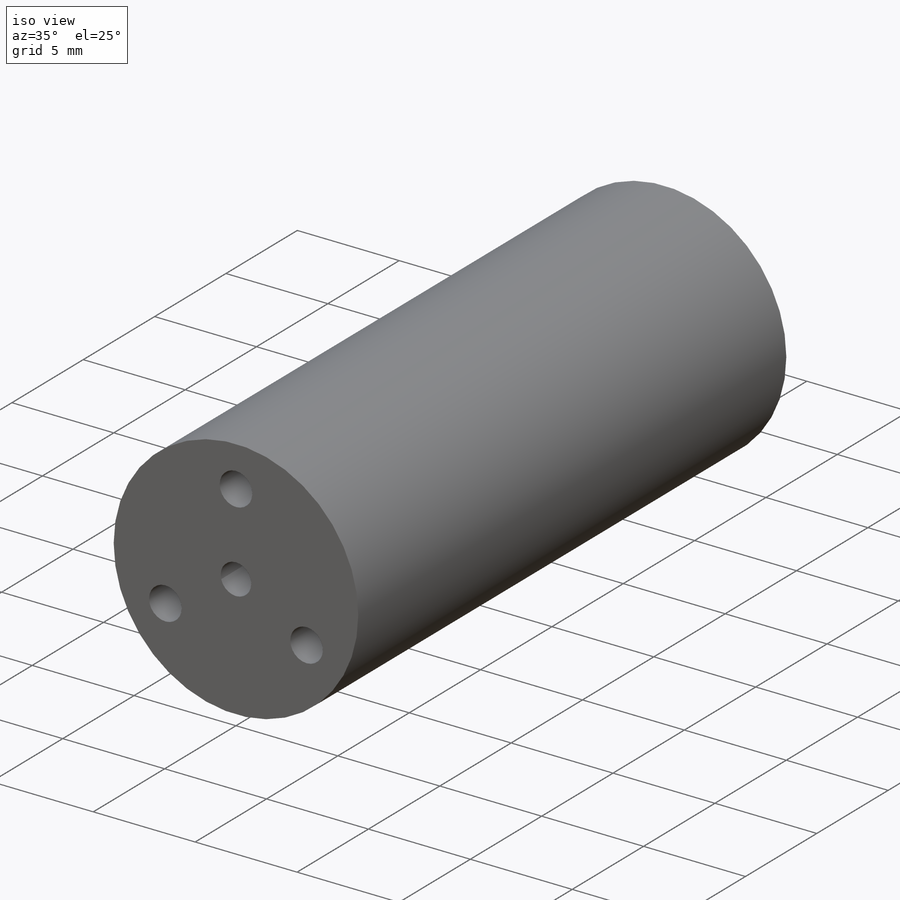
[diagram: iso view]
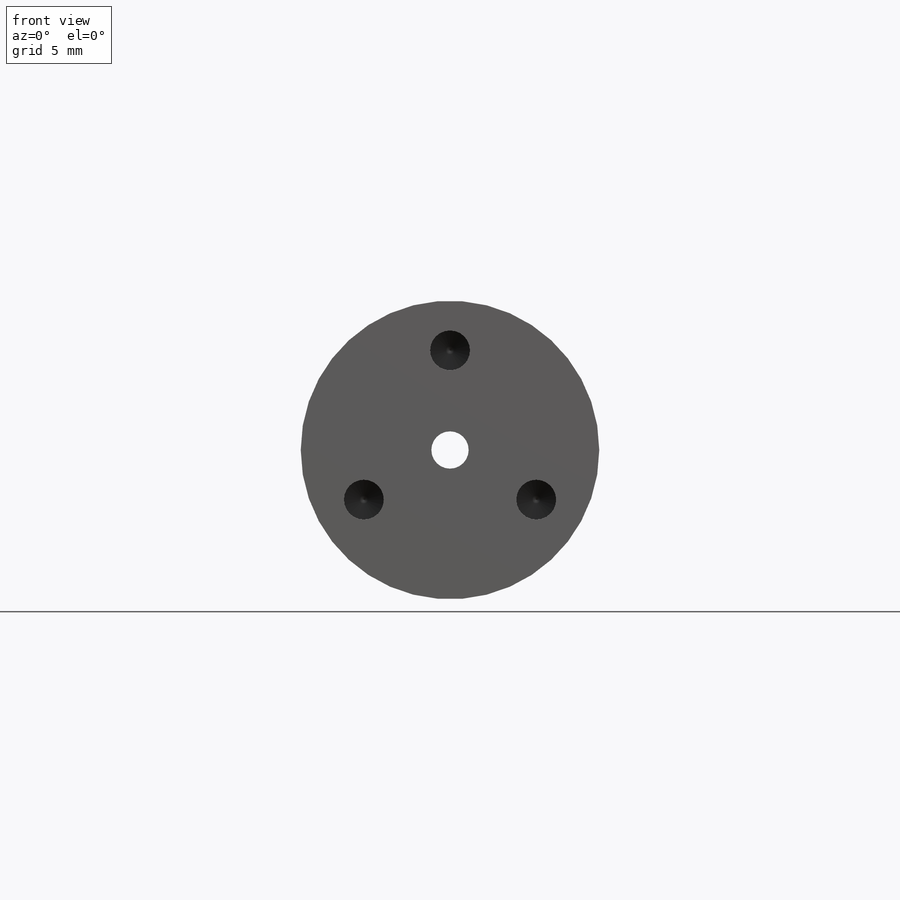
[diagram: front view]
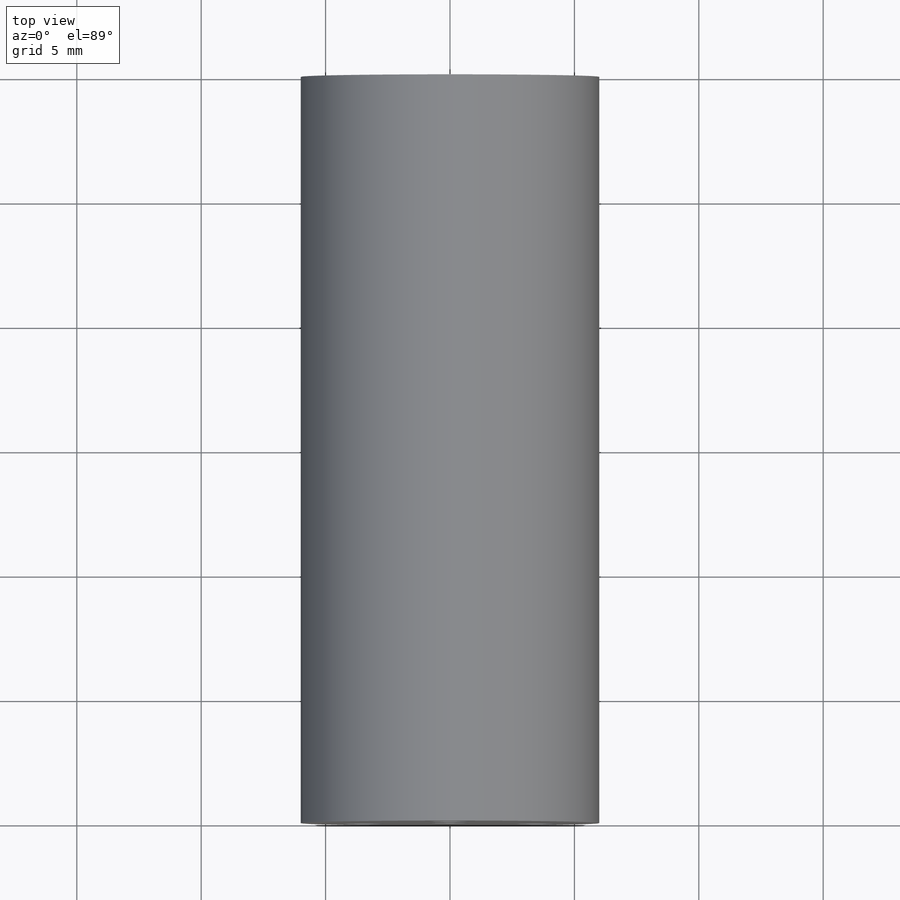
[diagram: top view]
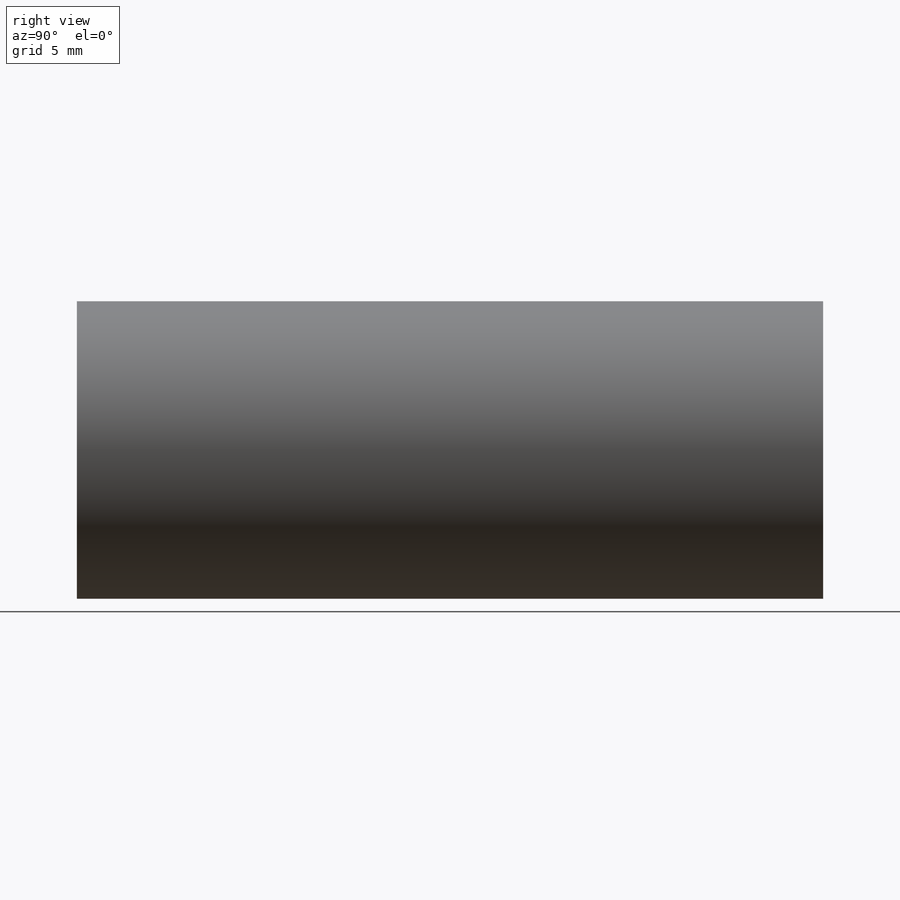
[diagram: right view]
SOLIDWORKS PART (.sldprt)
format: sldprt  version: not decoded by parser v0  size: 226,816 bytes
history: native  units: mm
features: sketch x4, plane x3, pattern_circular x2, material x1, extrude x1, hole x1, thread x1, cut_extrude x1 (+13 scaffold rows collapsed)
feature tree (27):
  scaffold x13  (default folders/planes/origin — collapsed)
  material  "Matériau <non spécifié>"
  plane  "Plan de face"
  plane  "Plan de dessus"
  plane  "Plan de droite"
  sketch  "Esquisse1"  dims[D1=12.0mm D2=1.5mm]
  extrude  "Extrusion1"  Depth=30mm
  hole  "Trou taraudé M21"  Diameter=1.6mm Depth=6mm
  sketch  "Esquisse3"  dims[D1=4.0mm]
  sketch  "Esquisse2"  dims[hole-wizard template sketch: 47 standard entries collapsed; hole parameters kept: c15.Profondeur du trou pour taraudage=6.0mm c15.D3=~14.816244mm c15.Angle de pointe=118.0deg]
  thread  "Filetage de perçage1"  Diameter=4mm  [1 undecoded]
  pattern_circular  "Répétition circulaire1"  Count=3 Angle=120deg
  sketch  "Esquisse4"  dims[D1=2.0mm D2=4.0mm]
  cut_extrude  "Extrusion2"  Depth=2mm
  pattern_circular  "Répétition circulaire2"  Count=2 Angle=180deg
decode coverage: 10 of 10 modeling features carry decoded parameters
note: ~ marks probable driven/reference dimensions
note: 1 parameter value undecoded
note: suppression state not decoded; provenance and decode notes live in map.json
